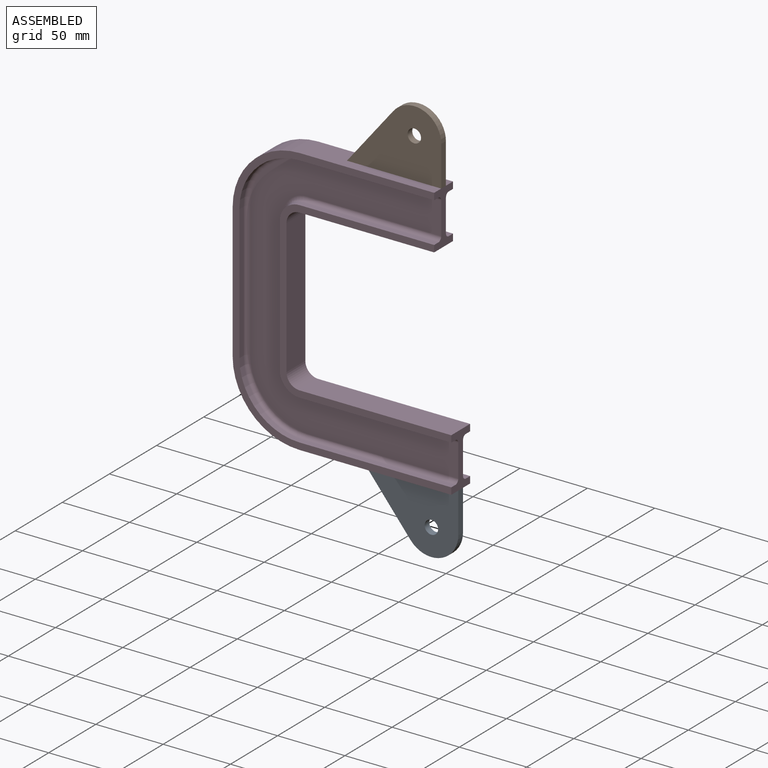
[diagram: assembled view]
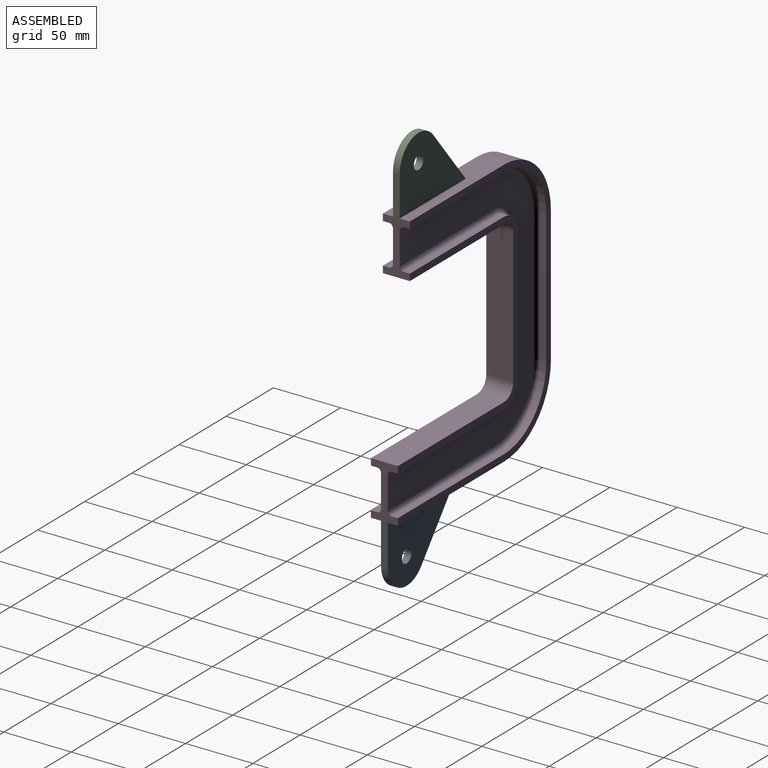
[diagram: assembled view, second angle]
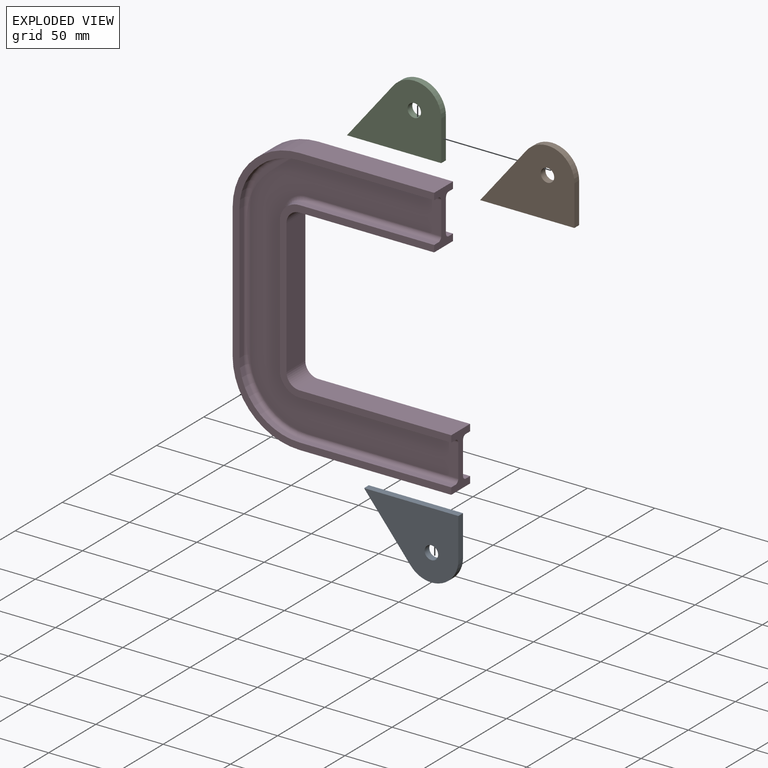
[diagram: exploded view]
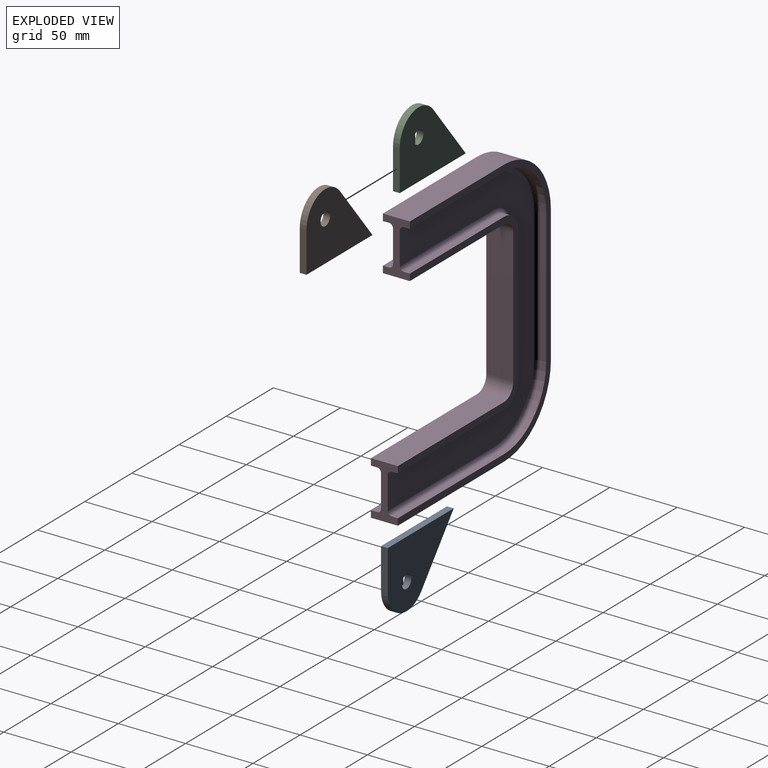
[diagram: exploded view, second angle]
ASSEMBLY  parts=4 mates=2
PART A: 7 faces, bbox 70x5x50 mm
  f0: plane 42.58x34.45mm, normal (-0.78,0,0.63), area 273.9mm2, adj f1,f4,f5,f6
  f1: plane 70x5mm, normal (0,0,-1), area 350mm2, adj f0,f2,f5,f6
  f2: plane 30x5mm, normal (1,0,0), area 150mm2, adj f1,f4,f5,f6
  f3: cylinder r=5mm len=10mm, axis (0,1,0), area 157.1mm2, adj f5,f6
  f4: cylinder r=20mm len=35.55mm, axis (0,1,0), area 246.1mm2, adj f0,f2,f5,f6
  f5: plane 70x50mm, normal (0,-1,0), area 2311.4mm2, adj f0,f1,f2,f3,f4
  f6: plane 70x50mm, normal (0,1,0), area 2311.4mm2, adj f0,f1,f2,f3,f4
PART B: same geometry as A
PART C: same geometry as A
PART D: 58 faces, bbox 162.4x20x199.3 mm
  f0: plane 112.7x4.5mm, normal (0,0,-1), area 507.2mm2, adj f1,f15,f16,f27
  f1: cylinder r=3mm len=112.7mm, axis (-1,0,0), area 531.1mm2, adj f0,f2,f16,f26
  f2: plane 183.35x154.37mm, normal (0,-1,0), area 9742.1mm2, adj f1,f3,f16,f17,f25,f26,f35,f36
  f3: cylinder r=3mm len=112.7mm, axis (-1,0,0), area 531.1mm2, adj f2,f4,f16,f25
  f4: plane 112.7x4.5mm, normal (0,0,1), area 507.2mm2, adj f3,f5,f16,f24
  f5: plane 129.35x127.37mm, normal (0,-1,0), area 1754.7mm2, adj f4,f6,f16,f17,f23,f24,f33,f34
  f6: plane 112.7x20mm, normal (0,0,-1), area 2254mm2, adj f5,f7,f16,f23
  f7: plane 129.35x127.37mm, normal (0,1,0), area 1754.7mm2, adj f6,f8,f16,f17,f22,f23,f32,f33
  f8: plane 112.7x4.5mm, normal (0,0,1), area 507.2mm2, adj f7,f9,f16,f22
  f9: cylinder r=3mm len=112.7mm, axis (-1,0,0), area 531.1mm2, adj f8,f10,f16,f21
  f10: plane 183.35x154.37mm, normal (0,1,0), area 9742.1mm2, adj f9,f11,f16,f17,f20,f21,f30,f31
  f11: cylinder r=3mm len=112.7mm, axis (-1,0,0), area 531.1mm2, adj f10,f12,f16,f20
  f12: plane 112.7x4.5mm, normal (0,0,-1), area 507.2mm2, adj f11,f13,f16,f19
  f13: plane 199.35x162.37mm, normal (0,1,0), area 2304.5mm2, adj f12,f14,f16,f17,f18,f19,f28,f29
  f14: plane 112.7x20mm, normal (0,0,1), area 2254mm2, adj f13,f15,f16,f18
  f15: plane 199.35x162.37mm, normal (0,-1,0), area 2304.5mm2, adj f0,f14,f16,f17,f18,f27,f28,f37
  f16: plane 40x20mm, normal (1,0,0), area 357.7mm2, adj f0,f1,f2,f3,f4,f5,f6,f7
  f17: plane 40x20mm, normal (1,0,0), area 357.7mm2, adj f2,f5,f7,f10,f13,f15,f48,f49
  f18: cylinder r=49.67mm len=49.67mm, axis (0,-1,0), area 1560.5mm2, adj f13,f14,f15,f28
  f19: cylinder r=44.67mm len=44.67mm, axis (0,-1,0), area 315.8mm2, adj f12,f13,f20,f29
  f20: torus R=41.67mm, axis (0,-1,0), area 322.6mm2, adj f10,f11,f19,f30
  f21: torus R=17.67mm, axis (0,-1,0), area 116.7mm2, adj f9,f10,f22,f31
  f22: cylinder r=14.67mm len=14.67mm, axis (0,-1,0), area 103.7mm2, adj f7,f8,f21,f32
  f23: cylinder r=9.67mm len=20mm, axis (0,-1,0), area 303.9mm2, adj f5,f6,f7,f33
  f24: cylinder r=14.67mm len=14.67mm, axis (0,-1,0), area 103.7mm2, adj f4,f5,f25,f34
  f25: torus R=17.67mm, axis (0,-1,0), area 116.7mm2, adj f2,f3,f24,f35
  f26: torus R=41.67mm, axis (0,-1,0), area 322.6mm2, adj f1,f2,f27,f36
  f27: cylinder r=44.67mm len=44.67mm, axis (0,-1,0), area 315.8mm2, adj f0,f15,f26,f37
  f28: plane 100x20mm, normal (-1,0,0), area 2000mm2, adj f13,f15,f18,f38
  f29: plane 100x4.5mm, normal (1,0,0), area 450mm2, adj f13,f19,f30,f39
  f30: cylinder r=3mm len=100mm, axis (0,0,-1), area 471.2mm2, adj f10,f20,f29,f40
  f31: cylinder r=3mm len=100mm, axis (0,0,-1), area 471.2mm2, adj f10,f21,f32,f41
  f32: plane 100x4.5mm, normal (-1,0,0), area 450mm2, adj f7,f22,f31,f42
  f33: plane 100x20mm, normal (1,0,0), area 2000mm2, adj f5,f7,f23,f43
  f34: plane 100x4.5mm, normal (-1,0,0), area 450mm2, adj f5,f24,f35,f44
  f35: cylinder r=3mm len=100mm, axis (0,0,-1), area 471.2mm2, adj f2,f25,f34,f45
  f36: cylinder r=3mm len=100mm, axis (0,0,-1), area 471.2mm2, adj f2,f26,f37,f46
  f37: plane 100x4.5mm, normal (1,0,0), area 450mm2, adj f15,f27,f36,f47
  f38: cylinder r=49.67mm len=49.67mm, axis (0,-1,0), area 1560.5mm2, adj f13,f15,f28,f48
  f39: cylinder r=44.67mm len=44.67mm, axis (0,-1,0), area 315.8mm2, adj f13,f29,f40,f49
  f40: torus R=41.67mm, axis (0,-1,0), area 322.6mm2, adj f10,f30,f39,f50
  f41: torus R=17.67mm, axis (0,-1,0), area 116.7mm2, adj f10,f31,f42,f51
  f42: cylinder r=14.67mm len=14.67mm, axis (0,-1,0), area 103.7mm2, adj f7,f32,f41,f52
  f43: cylinder r=9.67mm len=20mm, axis (0,-1,0), area 303.9mm2, adj f5,f7,f33,f53
  f44: cylinder r=14.67mm len=14.67mm, axis (0,-1,0), area 103.7mm2, adj f5,f34,f45,f54
  f45: torus R=17.67mm, axis (0,-1,0), area 116.7mm2, adj f2,f35,f44,f55
  f46: torus R=41.67mm, axis (0,-1,0), area 322.6mm2, adj f2,f36,f47,f56
  f47: cylinder r=44.67mm len=44.67mm, axis (0,-1,0), area 315.8mm2, adj f15,f37,f46,f57
  f48: plane 100x20mm, normal (0,0,-1), area 2000mm2, adj f13,f15,f17,f38
  f49: plane 100x4.5mm, normal (0,0,1), area 450mm2, adj f13,f17,f39,f50
  f50: cylinder r=3mm len=100mm, axis (1,0,0), area 471.2mm2, adj f10,f17,f40,f49
  f51: cylinder r=3mm len=100mm, axis (1,0,0), area 471.2mm2, adj f10,f17,f41,f52
  f52: plane 100x4.5mm, normal (0,0,-1), area 450mm2, adj f7,f17,f42,f51
  f53: plane 100x20mm, normal (0,0,1), area 2000mm2, adj f5,f7,f17,f43
  f54: plane 100x4.5mm, normal (0,0,-1), area 450mm2, adj f5,f17,f44,f55
  f55: cylinder r=3mm len=100mm, axis (1,0,0), area 471.2mm2, adj f2,f17,f45,f54
  f56: cylinder r=3mm len=100mm, axis (1,0,0), area 471.2mm2, adj f2,f17,f46,f57
  f57: plane 100x4.5mm, normal (0,0,1), area 450mm2, adj f15,f17,f47,f56
PLACE A rot(axis=(-1,0,0),180deg) t=(-128.12,-23.94,-216.96)mm
PLACE B t=(-140.82,-23.94,-17.61)mm
PLACE C t=(-140.82,-23.94,-17.61)mm
PLACE D rot(axis=(-1,0,0),180deg) t=(-14.98,-23.94,-107.53)mm fixed
MATE fastened A.f1 <-> D.f14  axis (0,0,1) through (-2.28,-23.94,-216.96)mm
MATE fastened D.f48 <-> C.f1  axis (0,0,1) through (-14.98,-23.94,-17.61)mm
